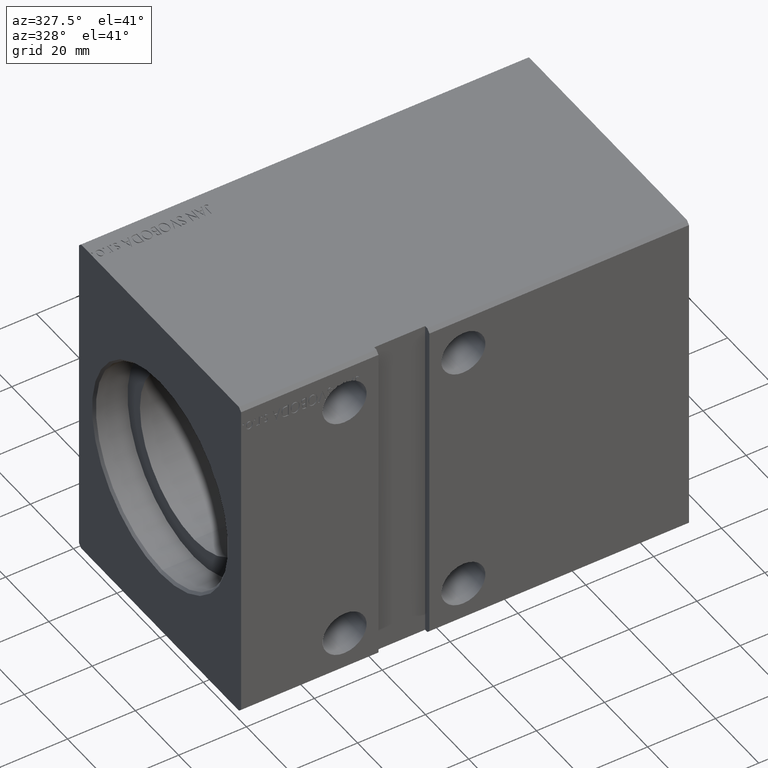
[diagram: clean part render]
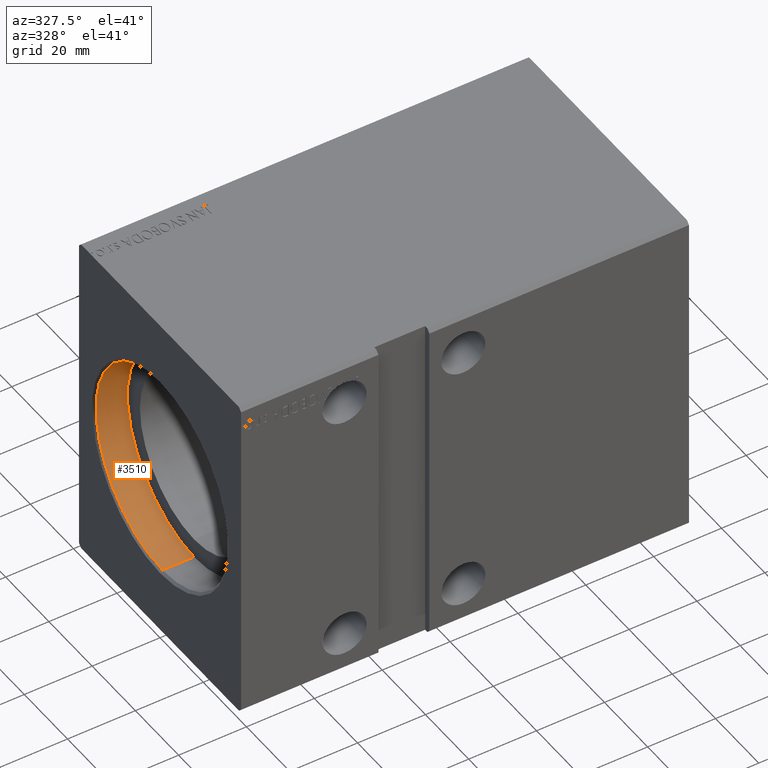
[diagram: same view with one face highlighted and labeled with its STEP entity id]
A machine part, auxiliary view. The second image highlights one B-rep face of the part: STEP entity #3510.
In plain terms, the highlighted cylindrical surface (partial cylindrical patch) has radius 30.75 mm, axis along (-1, -0, -0).
Its self-contained STEP definition (entity closure, byte-faithful):
#1326 = CARTESIAN_POINT ( 'NONE',  ( 10.00000000000000000, 3.765788907378111328E-15, -30.75000000000000355 ) ) ;
#1555 = ORIENTED_EDGE ( 'NONE', *, *, #34192, .T. ) ;
#2842 = EDGE_CURVE ( 'NONE', #12816, #33581, #18476, .T. ) ;
#3510 = ADVANCED_FACE ( 'NONE', ( #5067 ), #36571, .F. ) ;
#4102 = CARTESIAN_POINT ( 'NONE',  ( 0.7000000000000234923, 3.765788907378111328E-15, -30.75000000000000355 ) ) ;
#5067 = FACE_OUTER_BOUND ( 'NONE', #29111, .T. ) ;
#5272 = DIRECTION ( 'NONE',  ( -1.000000000000000000, -0.000000000000000000, -0.000000000000000000 ) ) ;
#6058 = CIRCLE ( 'NONE', #30541, 30.75000000000000355 ) ;
#12564 = DIRECTION ( 'NONE',  ( -1.000000000000000000, 0.000000000000000000, 0.000000000000000000 ) ) ;
#12816 = VERTEX_POINT ( 'NONE', #1326 ) ;
#13158 = DIRECTION ( 'NONE',  ( -1.000000000000000000, -0.000000000000000000, -0.000000000000000000 ) ) ;
#14206 = CARTESIAN_POINT ( 'NONE',  ( 10.00000000000000000, 0.000000000000000000, 0.000000000000000000 ) ) ;
#15166 = CARTESIAN_POINT ( 'NONE',  ( 10.00000000000000000, 3.765788907378111328E-15, -30.75000000000000355 ) ) ;
#17854 = CARTESIAN_POINT ( 'NONE',  ( 0.7000000000000234923, 0.000000000000000000, 30.75000000000000355 ) ) ;
#18476 = LINE ( 'NONE', #15166, #39166 ) ;
#19345 = AXIS2_PLACEMENT_3D ( 'NONE', #14206, #5272, #40096 ) ;
#20870 = CARTESIAN_POINT ( 'NONE',  ( 0.7000000000000234923, 0.000000000000000000, 0.000000000000000000 ) ) ;
#21163 = DIRECTION ( 'NONE',  ( -1.000000000000000000, -0.000000000000000000, -0.000000000000000000 ) ) ;
#23964 = AXIS2_PLACEMENT_3D ( 'NONE', #24835, #24210, #24010 ) ;
#24010 = DIRECTION ( 'NONE',  ( 0.000000000000000000, 0.000000000000000000, 1.000000000000000000 ) ) ;
#24210 = DIRECTION ( 'NONE',  ( -1.000000000000000000, 0.000000000000000000, 0.000000000000000000 ) ) ;
#24250 = VERTEX_POINT ( 'NONE', #27069 ) ;
#24835 = CARTESIAN_POINT ( 'NONE',  ( 10.00000000000000000, 0.000000000000000000, 0.000000000000000000 ) ) ;
#25160 = ORIENTED_EDGE ( 'NONE', *, *, #37698, .T. ) ;
#25370 = LINE ( 'NONE', #38018, #36482 ) ;
#25958 = CIRCLE ( 'NONE', #23964, 30.75000000000000355 ) ;
#26622 = ORIENTED_EDGE ( 'NONE', *, *, #2842, .F. ) ;
#26904 = DIRECTION ( 'NONE',  ( 0.000000000000000000, 0.000000000000000000, -1.000000000000000000 ) ) ;
#27069 = CARTESIAN_POINT ( 'NONE',  ( 10.00000000000000000, 0.000000000000000000, 30.75000000000000355 ) ) ;
#29111 = EDGE_LOOP ( 'NONE', ( #26622, #29400, #1555, #25160 ) ) ;
#29400 = ORIENTED_EDGE ( 'NONE', *, *, #40025, .F. ) ;
#30541 = AXIS2_PLACEMENT_3D ( 'NONE', #20870, #12564, #26904 ) ;
#33581 = VERTEX_POINT ( 'NONE', #4102 ) ;
#34192 = EDGE_CURVE ( 'NONE', #24250, #36310, #25370, .T. ) ;
#36310 = VERTEX_POINT ( 'NONE', #17854 ) ;
#36482 = VECTOR ( 'NONE', #13158, 1000.000000000000000 ) ;
#36571 = CYLINDRICAL_SURFACE ( 'NONE', #19345, 30.75000000000000355 ) ;
#37698 = EDGE_CURVE ( 'NONE', #36310, #33581, #6058, .T. ) ;
#38018 = CARTESIAN_POINT ( 'NONE',  ( 10.00000000000000000, 0.000000000000000000, 30.75000000000000355 ) ) ;
#39166 = VECTOR ( 'NONE', #21163, 1000.000000000000000 ) ;
#40025 = EDGE_CURVE ( 'NONE', #24250, #12816, #25958, .T. ) ;
#40096 = DIRECTION ( 'NONE',  ( 0.000000000000000000, 0.000000000000000000, 1.000000000000000000 ) ) ;